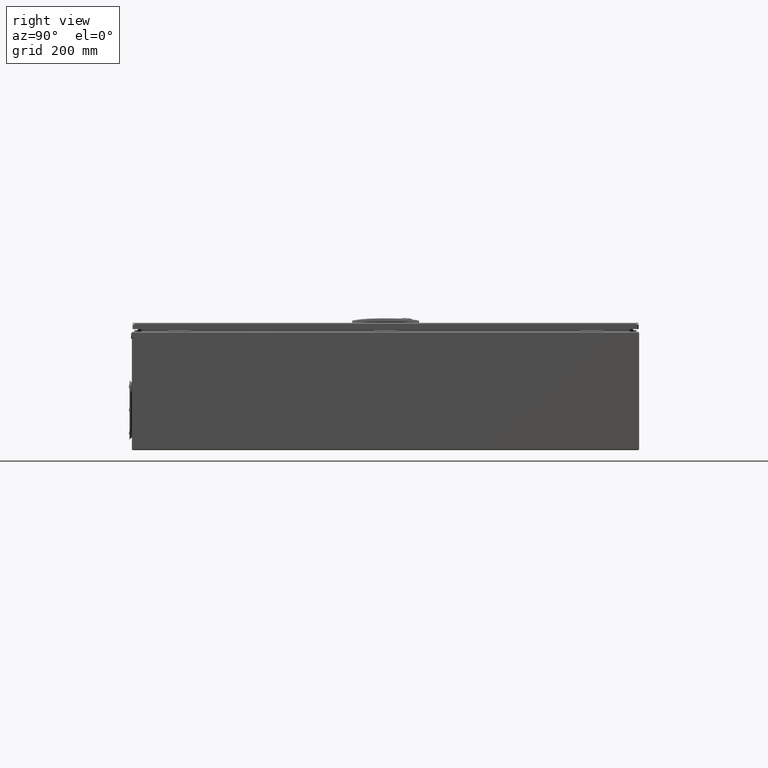
[diagram: clean part render]
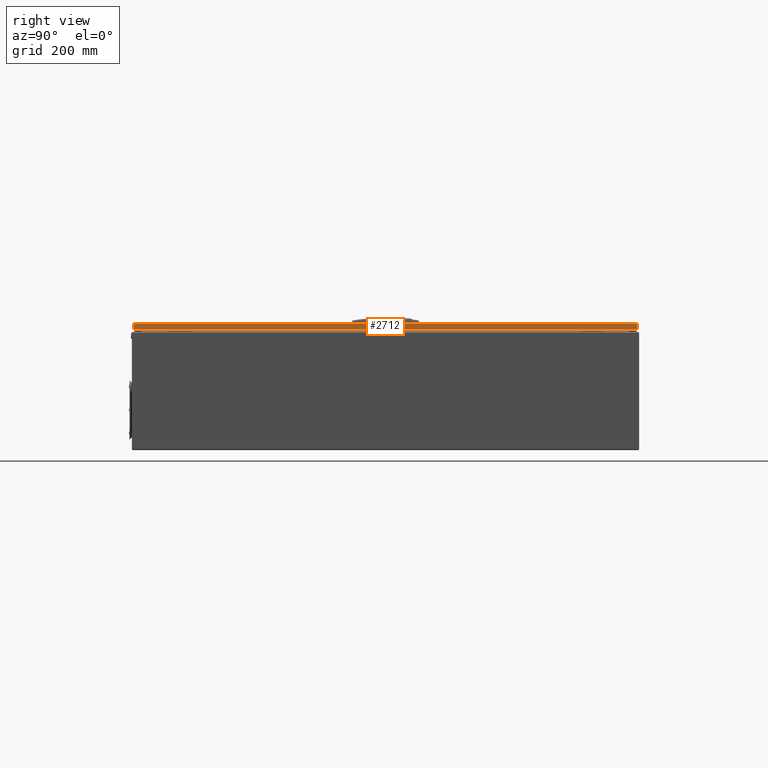
[diagram: same view with one face highlighted and labeled with its STEP entity id]
A machine part, right view. The second image highlights one B-rep face of the part: STEP entity #2712.
In plain terms, the highlighted planar face has unit normal (-1, -0, 0).
Its self-contained STEP definition (entity closure, byte-faithful):
#486 = CARTESIAN_POINT ( 'NONE',  ( -299.2500004168458600, 595.4999999999998900, 4.098076211353330200 ) ) ;
#661 = CARTESIAN_POINT ( 'NONE',  ( -299.2499999999999400, 594.4019237886466300, 3.000000000000002700 ) ) ;
#710 = CARTESIAN_POINT ( 'NONE',  ( -299.2499999999999400, -594.4019237886466300, 3.000000000000002700 ) ) ;
#969 = CARTESIAN_POINT ( 'NONE',  ( -299.2499999999999400, -595.4999999999998900, 4.098076211353274300 ) ) ;
#995 = CARTESIAN_POINT ( 'NONE',  ( -299.2500004168458100, -595.4999999999989800, 15.00000000000006900 ) ) ;
#2712 = ADVANCED_FACE ( 'NONE', ( #82345 ), #40317, .F. ) ;
#6548 = CIRCLE ( 'NONE', #73535, 2.999999999999994700 ) ;
#6556 = LINE ( 'NONE', #21637, #6569 ) ;
#6569 = VECTOR ( 'NONE', #21634, 1000.000000000000000 ) ;
#9052 = AXIS2_PLACEMENT_3D ( 'NONE', #39530, #39596, #40298 ) ;
#11971 = VERTEX_POINT ( 'NONE', #38132 ) ;
#20342 = CARTESIAN_POINT ( 'NONE',  ( -299.2499999999999400, -597.0000000000000000, 1.500000000000001300 ) ) ;
#20353 = DIRECTION ( 'NONE',  ( 0.0000000000000000000, -1.000000000000000000, -0.0000000000000000000 ) ) ;
#20516 = DIRECTION ( 'NONE',  ( -3.491483361109382100E-015, -1.783490802610693500E-016, -1.000000000000000000 ) ) ;
#20525 = CARTESIAN_POINT ( 'NONE',  ( -299.2499999999998900, -595.4999999999998900, 15.00000000000006900 ) ) ;
#20635 = DIRECTION ( 'NONE',  ( 0.0000000000000000000, 0.0000000000000000000, -1.000000000000000000 ) ) ;
#20706 = CARTESIAN_POINT ( 'NONE',  ( -299.2499999999998900, 595.4999999999998900, 15.00000000000029100 ) ) ;
#20719 = DIRECTION ( 'NONE',  ( -3.491483361109382100E-015, 1.783490802610693500E-016, -1.000000000000000000 ) ) ;
#20820 = DIRECTION ( 'NONE',  ( -1.000000000000000000, -0.0000000000000000000, 3.491483361109382100E-015 ) ) ;
#21149 = DIRECTION ( 'NONE',  ( 0.0000000000000000000, 0.0000000000000000000, -1.000000000000000000 ) ) ;
#21169 = CARTESIAN_POINT ( 'NONE',  ( -299.2499999999999400, 597.0000000000000000, 1.500000000000001300 ) ) ;
#21356 = CARTESIAN_POINT ( 'NONE',  ( -299.2499999999999400, -610.5000000000000000, 3.000000000000002700 ) ) ;
#21582 = DIRECTION ( 'NONE',  ( 1.000000000000000000, 0.0000000000000000000, -3.491483361109382100E-015 ) ) ;
#21634 = DIRECTION ( 'NONE',  ( 0.0000000000000000000, -1.000000000000000000, -0.0000000000000000000 ) ) ;
#21637 = CARTESIAN_POINT ( 'NONE',  ( -299.2499999999998900, 610.5000000000000000, 15.00000000000006900 ) ) ;
#31620 = EDGE_CURVE ( 'NONE', #41767, #41527, #6548, .T. ) ;
#31638 = EDGE_CURVE ( 'NONE', #11971, #41514, #6556, .T. ) ;
#31736 = EDGE_CURVE ( 'NONE', #41527, #41448, #86082, .T. ) ;
#31741 = EDGE_CURVE ( 'NONE', #41638, #41448, #86166, .T. ) ;
#31743 = EDGE_CURVE ( 'NONE', #11971, #41767, #86144, .T. ) ;
#31744 = EDGE_CURVE ( 'NONE', #41514, #41638, #86177, .T. ) ;
#38132 = CARTESIAN_POINT ( 'NONE',  ( -299.2499999999998900, 595.4999999999997700, 15.00000000000006900 ) ) ;
#39530 = CARTESIAN_POINT ( 'NONE',  ( -299.2499999999998900, -610.5000000000000000, 15.00000000000006900 ) ) ;
#39596 = DIRECTION ( 'NONE',  ( 1.000000000000000000, 0.0000000000000000000, -3.491483361109382100E-015 ) ) ;
#40298 = DIRECTION ( 'NONE',  ( -3.491483361109382100E-015, 0.0000000000000000000, -1.000000000000000000 ) ) ;
#40317 = PLANE ( 'NONE',  #9052 ) ;
#41448 = VERTEX_POINT ( 'NONE', #710 ) ;
#41514 = VERTEX_POINT ( 'NONE', #995 ) ;
#41527 = VERTEX_POINT ( 'NONE', #661 ) ;
#41638 = VERTEX_POINT ( 'NONE', #969 ) ;
#41767 = VERTEX_POINT ( 'NONE', #486 ) ;
#66379 = ORIENTED_EDGE ( 'NONE', *, *, #31736, .T. ) ;
#66759 = ORIENTED_EDGE ( 'NONE', *, *, #31620, .T. ) ;
#66765 = ORIENTED_EDGE ( 'NONE', *, *, #31741, .F. ) ;
#66792 = ORIENTED_EDGE ( 'NONE', *, *, #31743, .T. ) ;
#68178 = ORIENTED_EDGE ( 'NONE', *, *, #31638, .F. ) ;
#68211 = ORIENTED_EDGE ( 'NONE', *, *, #31744, .F. ) ;
#73191 = AXIS2_PLACEMENT_3D ( 'NONE', #20342, #20820, #20635 ) ;
#73535 = AXIS2_PLACEMENT_3D ( 'NONE', #21169, #21582, #21149 ) ;
#82345 = FACE_OUTER_BOUND ( 'NONE', #96025, .T. ) ;
#86031 = VECTOR ( 'NONE', #20353, 1000.000000000000000 ) ;
#86082 = LINE ( 'NONE', #21356, #86031 ) ;
#86144 = LINE ( 'NONE', #20706, #86162 ) ;
#86162 = VECTOR ( 'NONE', #20719, 1000.000000000000000 ) ;
#86166 = CIRCLE ( 'NONE', #73191, 2.999999999999994700 ) ;
#86177 = LINE ( 'NONE', #20525, #86181 ) ;
#86181 = VECTOR ( 'NONE', #20516, 1000.000000000000000 ) ;
#96025 = EDGE_LOOP ( 'NONE', ( #66759, #66379, #66765, #68211, #68178, #66792 ) ) ;